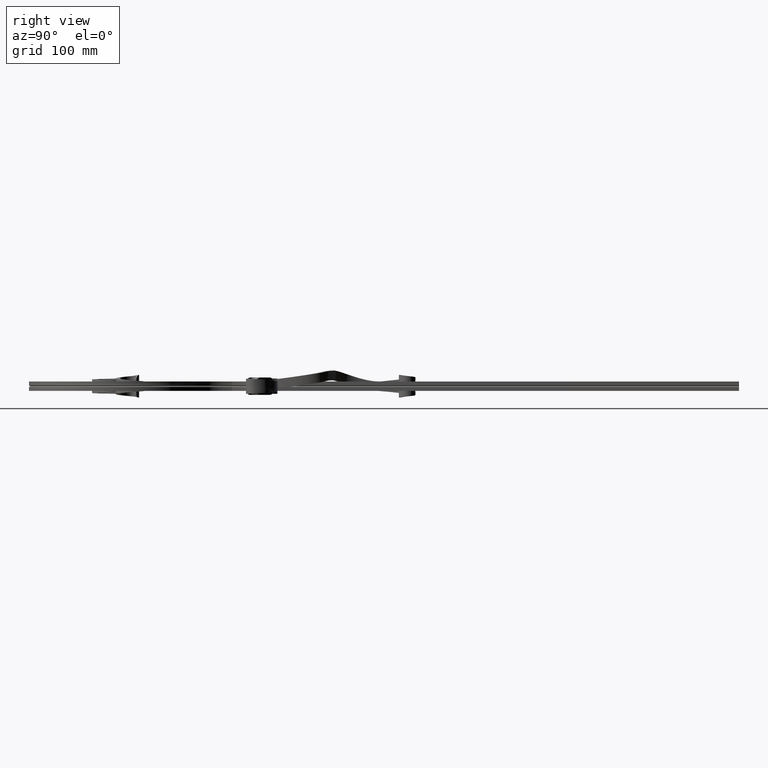
[diagram: clean part render]
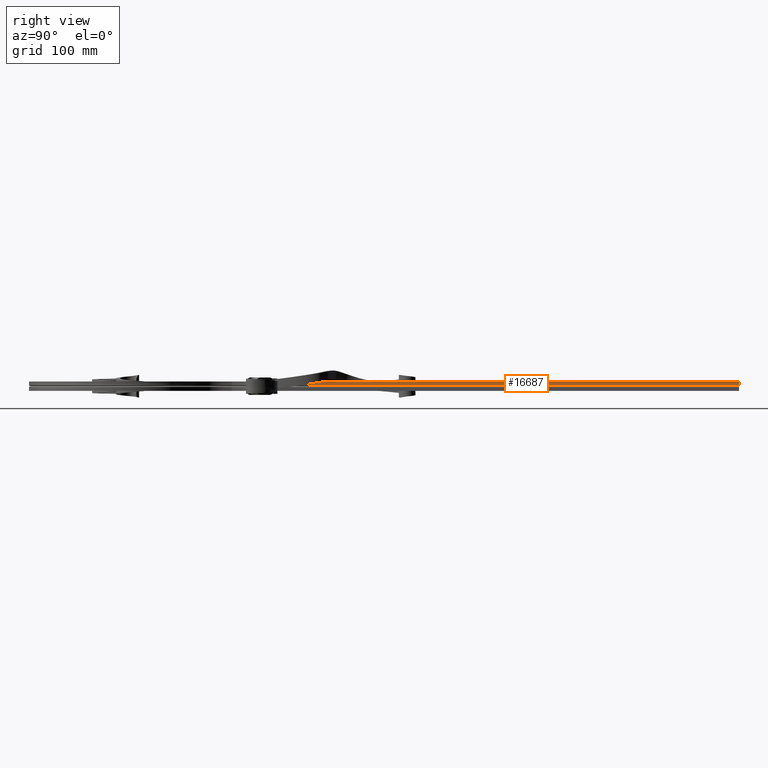
[diagram: same view with one face highlighted and labeled with its STEP entity id]
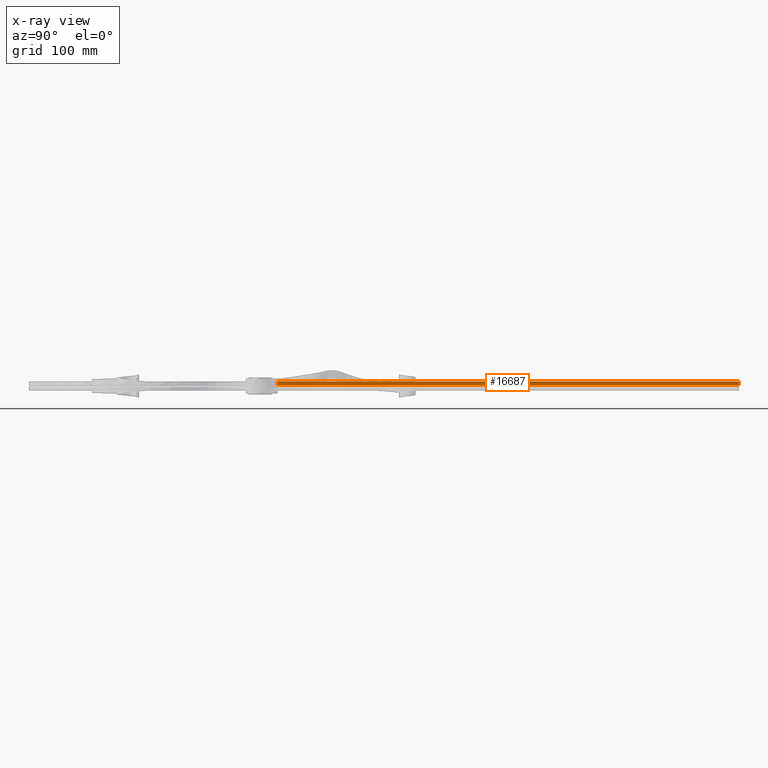
[diagram: x-ray of the same camera — body ghosted, the highlighted face saturated]
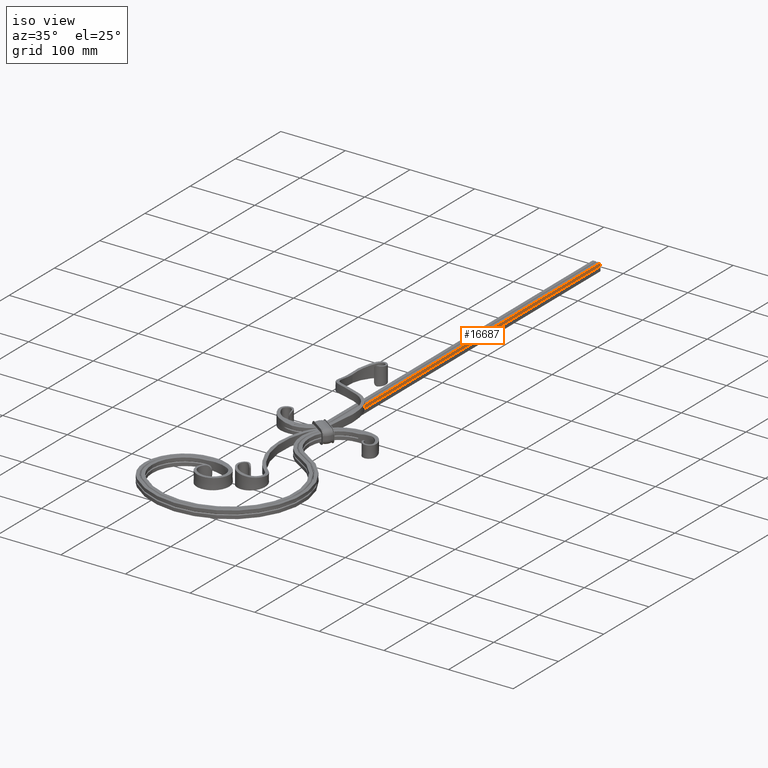
[diagram: same view with one face highlighted and labeled with its STEP entity id]
A machine part, right view. The second image highlights one B-rep face of the part: STEP entity #16687.
The next image is the same camera in x-ray: the body ghosted, the highlighted face saturated — about 0% of this face is hidden behind the body in this view.
A second angle (iso view) of the same face is appended — the face is thin or edge-on in the first view.
In plain terms, the highlighted planar face has unit normal (-1, -0, 0).
Its self-contained STEP definition (entity closure, byte-faithful):
#1060 = CARTESIAN_POINT ( 'NONE',  ( 5.006982861866333297E-11, -79.57649498631414531, 5.766977807802641465 ) ) ;
#1206 = DIRECTION ( 'NONE',  ( -1.000000000000000000, -9.044284789280752063E-17, 0.000000000000000000 ) ) ;
#1945 = B_SPLINE_CURVE_WITH_KNOTS ( 'NONE', 3,
 ( #3097, #1060, #9747, #20678 ),
 .UNSPECIFIED., .F., .F.,
 ( 4, 4 ),
 ( 0.000000000000000000, 0.003447865652928906732 ),
 .UNSPECIFIED. ) ;
#3097 = CARTESIAN_POINT ( 'NONE',  ( 5.006993183821473044E-11, -80.71776324362863875, 5.631270881710293885 ) ) ;
#3273 = VERTEX_POINT ( 'NONE', #25841 ) ;
#3911 = EDGE_CURVE ( 'NONE', #17731, #18381, #4386, .T. ) ;
#4386 = LINE ( 'NONE', #23034, #11924 ) ;
#4922 = LINE ( 'NONE', #19628, #26586 ) ;
#5165 = VERTEX_POINT ( 'NONE', #20526 ) ;
#5667 = CARTESIAN_POINT ( 'NONE',  ( 4.973278075747797793E-14, -80.70041910210818514, 6.000000000000000000 ) ) ;
#5962 = EDGE_CURVE ( 'NONE', #3273, #9907, #21396, .T. ) ;
#6027 = CARTESIAN_POINT ( 'NONE',  ( 1.734723475976807094E-15, 450.0000000000000000, 6.000000000000000000 ) ) ;
#6041 = CARTESIAN_POINT ( 'NONE',  ( 1.734723475976807094E-15, 450.0000000000000000, 6.000000000000000000 ) ) ;
#6453 = ORIENTED_EDGE ( 'NONE', *, *, #25737, .F. ) ;
#6935 = ORIENTED_EDGE ( 'NONE', *, *, #10520, .F. ) ;
#7865 = CARTESIAN_POINT ( 'NONE',  ( 2.103924321785952832E-12, -80.71196700598322593, 5.754179888080326322 ) ) ;
#7917 = VECTOR ( 'NONE', #17085, 1000.000000000000000 ) ;
#7963 = CARTESIAN_POINT ( 'NONE',  ( -6.036837696399288689E-13, -135.0000000000023590, 6.000000000000000000 ) ) ;
#8737 = ORIENTED_EDGE ( 'NONE', *, *, #19127, .F. ) ;
#9353 = VECTOR ( 'NONE', #23518, 1000.000000000000000 ) ;
#9510 = FACE_OUTER_BOUND ( 'NONE', #9602, .T. ) ;
#9602 = EDGE_LOOP ( 'NONE', ( #18327, #27767, #12760, #15664, #6935, #8737, #6453 ) ) ;
#9747 = CARTESIAN_POINT ( 'NONE',  ( 5.423570498379928469E-14, -78.43361955821021070, 5.888707707006392233 ) ) ;
#9773 = CARTESIAN_POINT ( 'NONE',  ( 5.006993183821473044E-11, -80.71776324362863875, 5.631270881710293885 ) ) ;
#9907 = VERTEX_POINT ( 'NONE', #9773 ) ;
#9925 = DIRECTION ( 'NONE',  ( 1.034903407035731979E-15, 1.000000000000000000, 0.000000000000000000 ) ) ;
#10520 = EDGE_CURVE ( 'NONE', #5165, #18381, #27517, .T. ) ;
#10546 = CARTESIAN_POINT ( 'NONE',  ( 4.896313030454992415E-14, -77.28971556618863303, 6.000000000000000000 ) ) ;
#10852 = EDGE_CURVE ( 'NONE', #16148, #17731, #11026, .T. ) ;
#11026 = LINE ( 'NONE', #7963, #11693 ) ;
#11693 = VECTOR ( 'NONE', #21043, 1000.000000000000000 ) ;
#11924 = VECTOR ( 'NONE', #9925, 1000.000000000000000 ) ;
#12069 = PLANE ( 'NONE',  #27115 ) ;
#12072 = LINE ( 'NONE', #6041, #7917 ) ;
#12760 = ORIENTED_EDGE ( 'NONE', *, *, #10852, .T. ) ;
#13092 = CARTESIAN_POINT ( 'NONE',  ( 3.919634354674443097E-13, 450.0000000000000000, 1.000000000000004219 ) ) ;
#15664 = ORIENTED_EDGE ( 'NONE', *, *, #3911, .T. ) ;
#16148 = VERTEX_POINT ( 'NONE', #17937 ) ;
#16284 = CARTESIAN_POINT ( 'NONE',  ( 1.734723475976807094E-15, 450.0000000000000000, 6.000000000000000000 ) ) ;
#16687 = ADVANCED_FACE ( 'NONE', ( #9510 ), #12069, .F. ) ;
#17085 = DIRECTION ( 'NONE',  ( -9.044284789280752063E-17, 1.000000000000000000, -0.000000000000000000 ) ) ;
#17731 = VERTEX_POINT ( 'NONE', #23659 ) ;
#17937 = CARTESIAN_POINT ( 'NONE',  ( -6.036837696399288689E-13, -135.0000000000023590, 6.000000000000000000 ) ) ;
#18327 = ORIENTED_EDGE ( 'NONE', *, *, #5962, .F. ) ;
#18381 = VERTEX_POINT ( 'NONE', #13092 ) ;
#19127 = EDGE_CURVE ( 'NONE', #27959, #5165, #4922, .T. ) ;
#19628 = CARTESIAN_POINT ( 'NONE',  ( 1.734723475976807094E-15, 450.0000000000000000, 6.000000000000000000 ) ) ;
#20526 = CARTESIAN_POINT ( 'NONE',  ( 1.734723475976807094E-15, 450.0000000000000000, 6.000000000000000000 ) ) ;
#20678 = CARTESIAN_POINT ( 'NONE',  ( 4.896313030454992415E-14, -77.28971556618863303, 6.000000000000000000 ) ) ;
#21043 = DIRECTION ( 'NONE',  ( -0.000000000000000000, -0.000000000000000000, -1.000000000000000000 ) ) ;
#21048 = CARTESIAN_POINT ( 'NONE',  ( 5.029145286987852000E-14, -80.70618568693602413, 5.877089598851304331 ) ) ;
#21396 = B_SPLINE_CURVE_WITH_KNOTS ( 'NONE', 3,
 ( #5667, #21048, #7865, #23233 ),
 .UNSPECIFIED., .F., .F.,
 ( 4, 4 ),
 ( 1.734723475976807094E-18, 0.0003691368065091683664 ),
 .UNSPECIFIED. ) ;
#22812 = DIRECTION ( 'NONE',  ( 9.044284789280752063E-17, -1.000000000000000000, 0.000000000000000000 ) ) ;
#23034 = CARTESIAN_POINT ( 'NONE',  ( -2.195092398447600006E-13, -135.0000000000023874, 1.000000000000000444 ) ) ;
#23233 = CARTESIAN_POINT ( 'NONE',  ( 5.006993183821473044E-11, -80.71776324362863875, 5.631270881710293885 ) ) ;
#23518 = DIRECTION ( 'NONE',  ( -0.000000000000000000, -0.000000000000000000, -1.000000000000000000 ) ) ;
#23659 = CARTESIAN_POINT ( 'NONE',  ( -2.195092398447600006E-13, -135.0000000000023874, 1.000000000000000222 ) ) ;
#24342 = EDGE_CURVE ( 'NONE', #16148, #3273, #12072, .T. ) ;
#25737 = EDGE_CURVE ( 'NONE', #9907, #27959, #1945, .T. ) ;
#25841 = CARTESIAN_POINT ( 'NONE',  ( 4.973278075747797793E-14, -80.70041910210818514, 6.000000000000000000 ) ) ;
#26586 = VECTOR ( 'NONE', #28459, 1000.000000000000000 ) ;
#27115 = AXIS2_PLACEMENT_3D ( 'NONE', #16284, #1206, #22812 ) ;
#27517 = LINE ( 'NONE', #6027, #9353 ) ;
#27767 = ORIENTED_EDGE ( 'NONE', *, *, #24342, .F. ) ;
#27959 = VERTEX_POINT ( 'NONE', #10546 ) ;
#28459 = DIRECTION ( 'NONE',  ( -9.044284789280752063E-17, 1.000000000000000000, -0.000000000000000000 ) ) ;